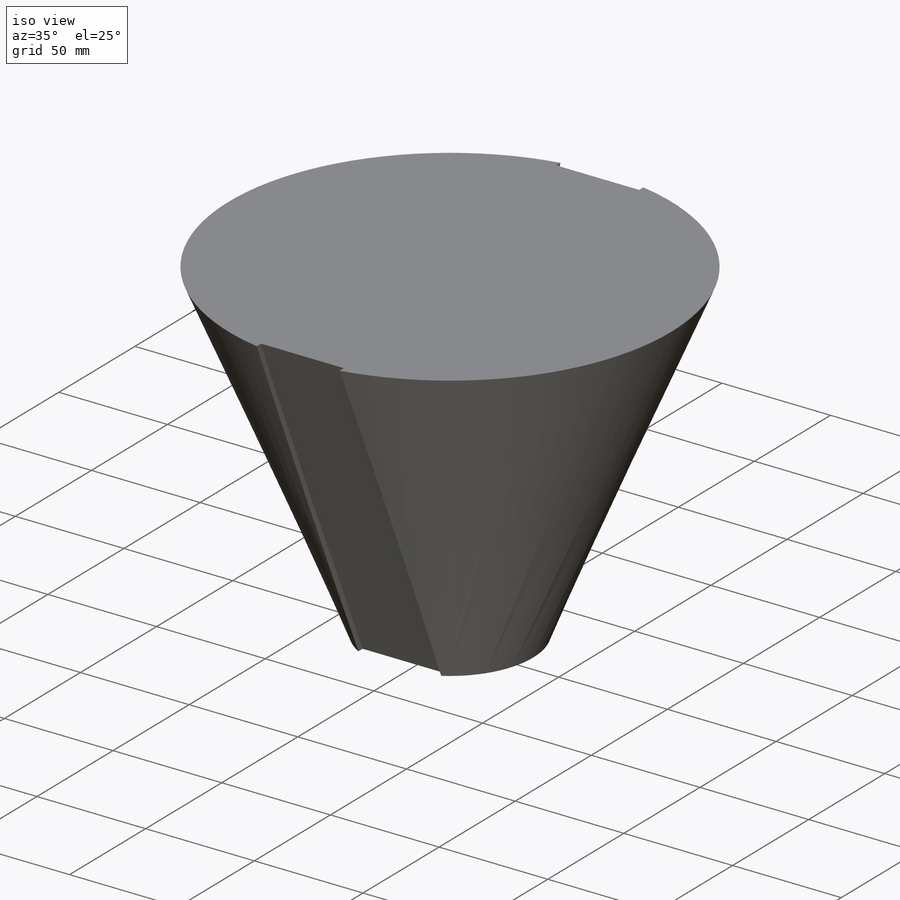
[diagram: iso view]
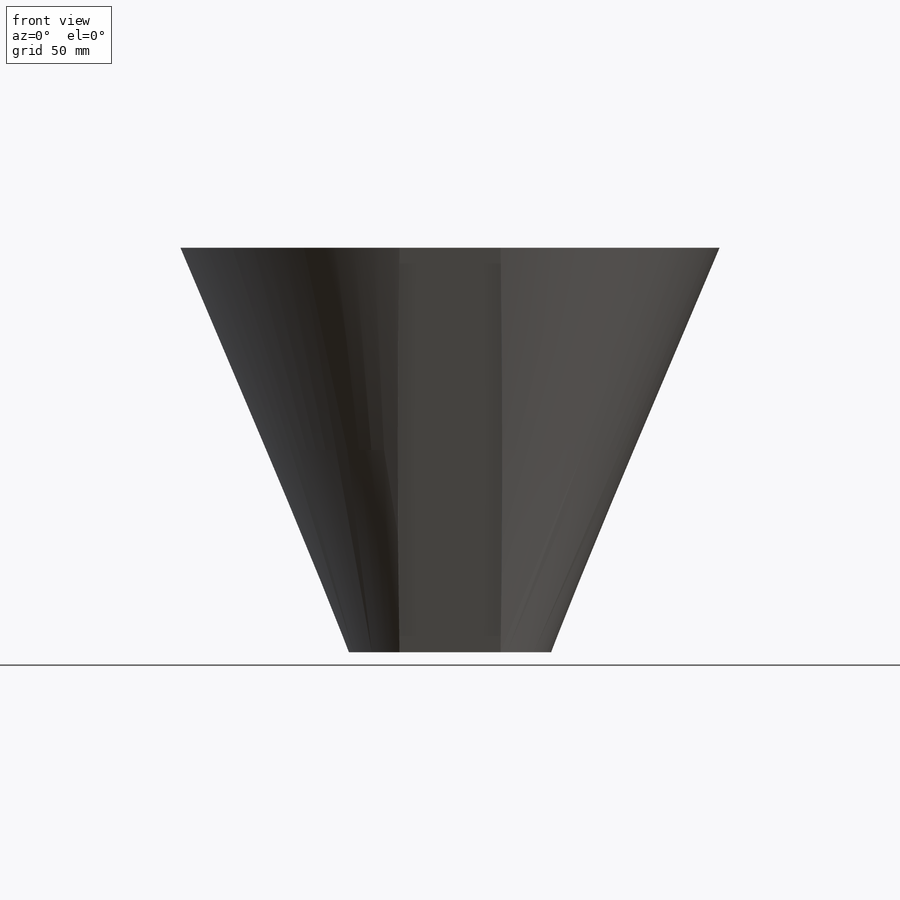
[diagram: front view]
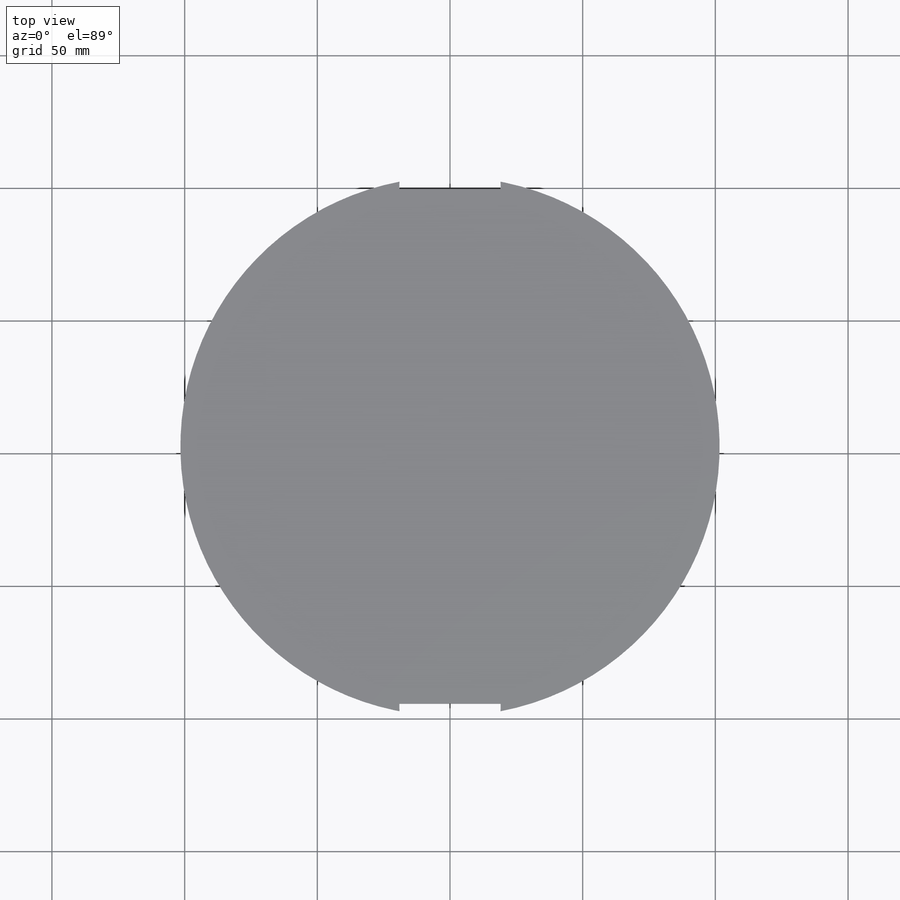
[diagram: top view]
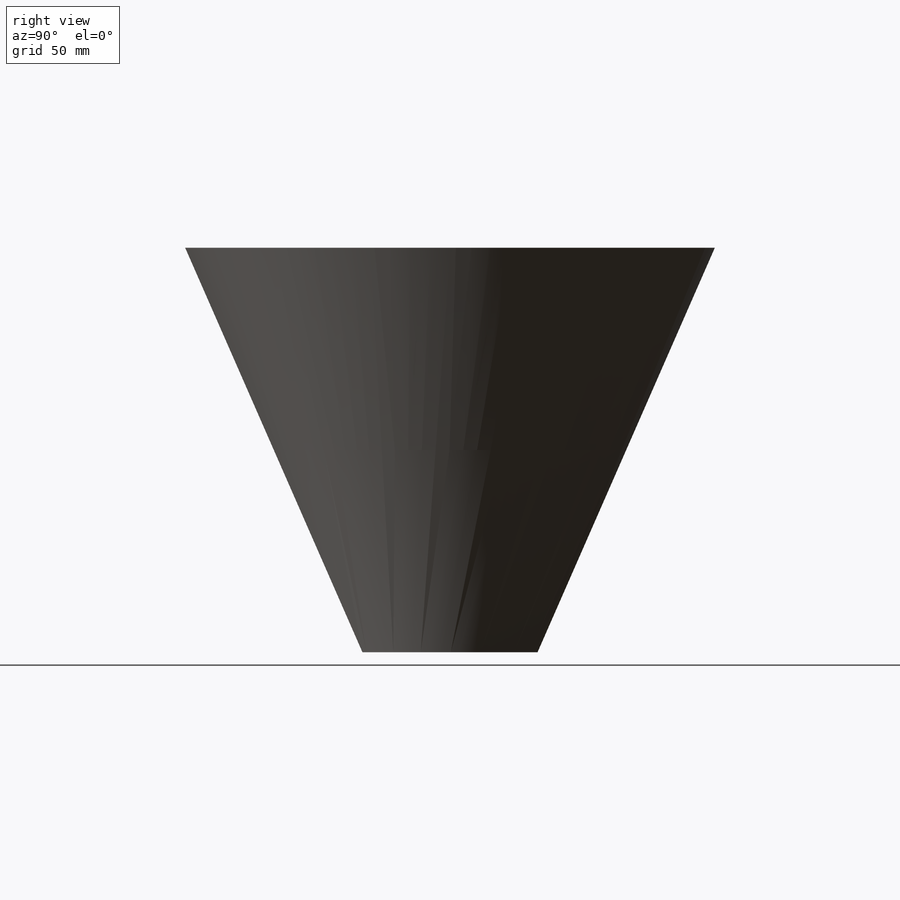
[diagram: right view]
SOLIDWORKS PART (.sldprt)
format: sldprt  version: not decoded by parser v0  size: 226,304 bytes
history: native  units: mm
features: sketch x9, cut_extrude x3, material x1, plane x1, mirror x1 (+12 scaffold rows collapsed)
feature tree (27):
  scaffold x12  (default folders/planes/origin — collapsed)
  material  "Material <not specified>"
  sketch  "Sketch1"  dims[D1=76.2mm]
  plane  "Plane1"  Offset=152.4mm
  sketch  "Sketch3"  dims[D1=203.2mm]
  sketch  "Sketch4"  dims[D1=38.1mm]
  sketch  "Sketch5"  dims[D1=38.1mm]
  sketch  "3DSketch1"
  cut_extrude  "Cut-Extrude1"  [1 undecoded]
  sketch  "Sketch7"
  sketch  "3DSketch2"
  sketch  "Sketch11"  dims[D1=0.0mm]
  cut_extrude  "Cut-Extrude2"  Depth=2.54mm
  sketch  "Sketch12"  dims[D1=0.0mm]
  cut_extrude  "Cut-Extrude3"  [1 undecoded]
  mirror  "Mirror1"
decode coverage: 7 of 13 modeling features carry decoded parameters
note: 2 parameter values undecoded
note: suppression state not decoded; provenance and decode notes live in map.json
